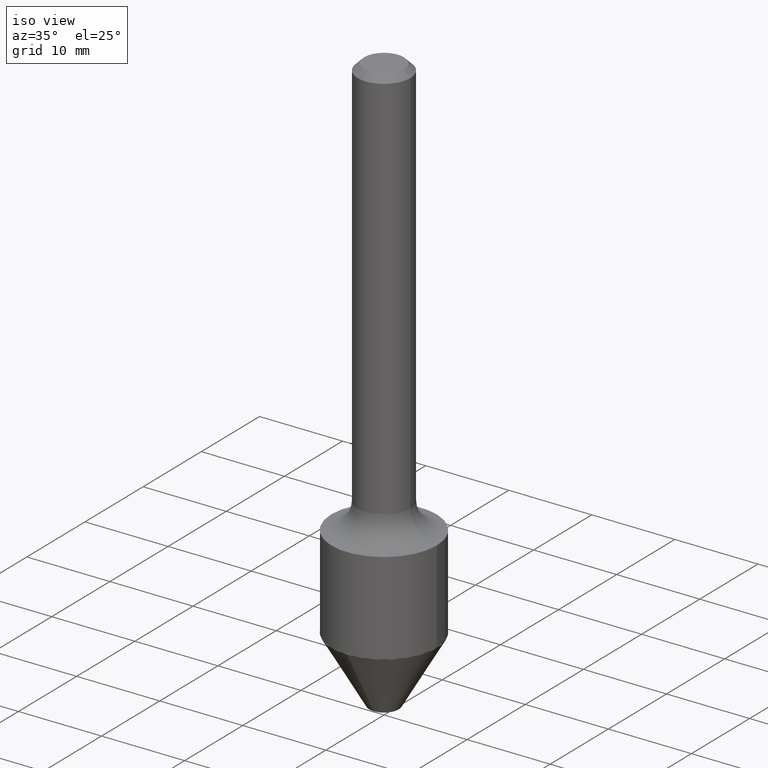
[diagram: clean part render]
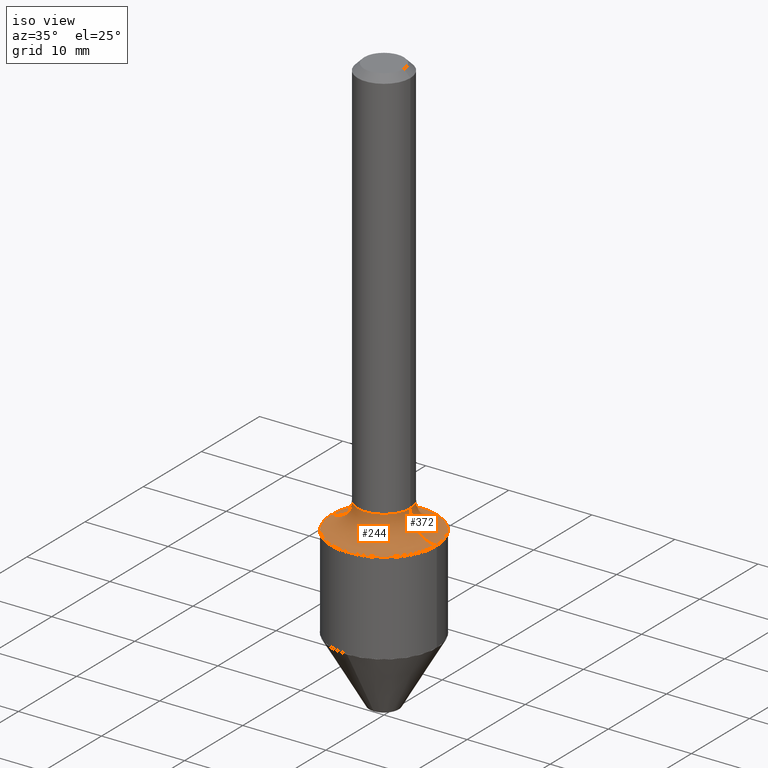
[diagram: same view with one multi-face feature highlighted, each face labeled with its STEP entity id]
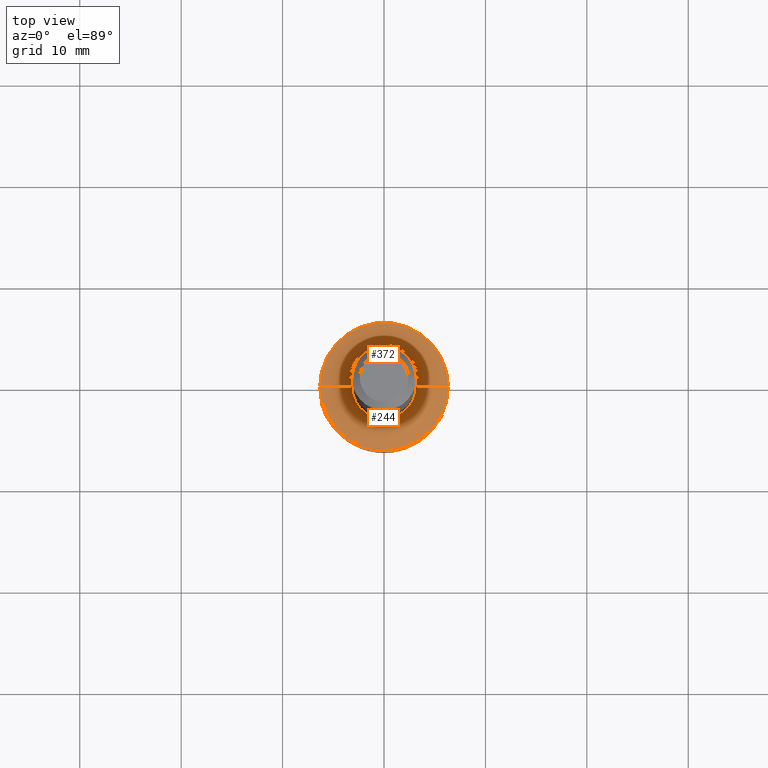
[diagram: same view with one multi-face feature highlighted, each face labeled with its STEP entity id]
A machine part, iso view. The highlighted faces form ONE feature: a constant-radius fillet chain: 2 tangent blend faces with common blend radius 3.175 mm. The faces share edges in the B-rep.
A second angle (top view) of the same feature is appended — it is thin or edge-on in the first view.
Their STEP definitions:
[1] entity #372 (Torus):
#1 = DIRECTION ( 'NONE',  ( 1.000000000000000000, -6.982962677686269077E-15, 4.883557194083112901E-29 ) ) ;
#6 = EDGE_CURVE ( 'NONE', #411, #233, #375, .T. ) ;
#7 = CARTESIAN_POINT ( 'NONE',  ( 0.2500000000000000000, -8.728703347107857054E-15, -1.999999999999999778 ) ) ;
#28 = CARTESIAN_POINT ( 'NONE',  ( -0.2500000000000000000, -5.206605838286039123E-15, -1.999999999999999778 ) ) ;
#36 = CARTESIAN_POINT ( 'NONE',  ( 0.1250000000000002498, -7.419397845041683624E-15, -1.875000000000000000 ) ) ;
#41 = CARTESIAN_POINT ( 'NONE',  ( -0.2500000000000000000, -4.770170670930647453E-15, -1.875000000000000000 ) ) ;
#45 = DIRECTION ( 'NONE',  ( -1.000000000000000000, 7.105427357601001859E-15, 0.000000000000000000 ) ) ;
#47 = ORIENTED_EDGE ( 'NONE', *, *, #392, .F. ) ;
#91 = CARTESIAN_POINT ( 'NONE',  ( 4.585254011597131119E-29, -6.546527510330898707E-15, -1.875000000000000000 ) ) ;
#110 = ORIENTED_EDGE ( 'NONE', *, *, #171, .T. ) ;
#114 = CIRCLE ( 'NONE', #466, 0.1249999999999996947 ) ;
#123 = VERTEX_POINT ( 'NONE', #347 ) ;
#166 = CARTESIAN_POINT ( 'NONE',  ( 4.890937612370272633E-29, -6.982962677686290376E-15, -1.999999999999999778 ) ) ;
#171 = EDGE_CURVE ( 'NONE', #399, #411, #114, .T. ) ;
#192 = DIRECTION ( 'NONE',  ( 1.000000000000000000, -6.982962677686264344E-15, 0.000000000000000000 ) ) ;
#233 = VERTEX_POINT ( 'NONE', #28 ) ;
#236 = DIRECTION ( 'NONE',  ( -2.445468806185136597E-29, 3.491481338843145583E-15, 1.000000000000000000 ) ) ;
#241 = DIRECTION ( 'NONE',  ( 7.105427357601001859E-15, 1.000000000000000000, -3.491481338843145583E-15 ) ) ;
#242 = ORIENTED_EDGE ( 'NONE', *, *, #461, .F. ) ;
#284 = DIRECTION ( 'NONE',  ( -2.445468806185136597E-29, 3.491481338843145583E-15, 1.000000000000000000 ) ) ;
#285 = DIRECTION ( 'NONE',  ( -2.445468806185136597E-29, 3.491481338843145583E-15, 1.000000000000000000 ) ) ;
#286 = DIRECTION ( 'NONE',  ( 1.000000000000000000, -6.982962677686266711E-15, 0.000000000000000000 ) ) ;
#288 = AXIS2_PLACEMENT_3D ( 'NONE', #166, #284, #286 ) ;
#324 = AXIS2_PLACEMENT_3D ( 'NONE', #41, #241, #45 ) ;
#347 = CARTESIAN_POINT ( 'NONE',  ( -0.1250000000000002498, -5.432477464458405904E-15, -1.875000000000000000 ) ) ;
#353 = FACE_OUTER_BOUND ( 'NONE', #389, .T. ) ;
#372 = ADVANCED_FACE ( 'NONE', ( #353 ), #459, .F. ) ;
#375 = CIRCLE ( 'NONE', #288, 0.2500000000000000000 ) ;
#389 = EDGE_LOOP ( 'NONE', ( #242, #47, #110, #469 ) ) ;
#392 = EDGE_CURVE ( 'NONE', #399, #123, #472, .T. ) ;
#399 = VERTEX_POINT ( 'NONE', #36 ) ;
#400 = CARTESIAN_POINT ( 'NONE',  ( 4.585254011597131119E-29, -6.546527510330898707E-15, -1.875000000000000000 ) ) ;
#411 = VERTEX_POINT ( 'NONE', #7 ) ;
#421 = CARTESIAN_POINT ( 'NONE',  ( 0.2500000000000000000, -8.292268179752465385E-15, -1.875000000000000000 ) ) ;
#452 = AXIS2_PLACEMENT_3D ( 'NONE', #400, #285, #1 ) ;
#458 = DIRECTION ( 'NONE',  ( -6.982962677686266711E-15, -1.000000000000000000, 3.491481338843145583E-15 ) ) ;
#459 = TOROIDAL_SURFACE ( 'NONE', #452, 0.2500000000000000000, 0.1249999999999996947 ) ;
#460 = DIRECTION ( 'NONE',  ( 1.000000000000000000, -6.982962677686272233E-15, 0.000000000000000000 ) ) ;
#461 = EDGE_CURVE ( 'NONE', #123, #233, #484, .T. ) ;
#466 = AXIS2_PLACEMENT_3D ( 'NONE', #421, #458, #460 ) ;
#469 = ORIENTED_EDGE ( 'NONE', *, *, #6, .T. ) ;
#472 = CIRCLE ( 'NONE', #510, 0.1250000000000002498 ) ;
#484 = CIRCLE ( 'NONE', #324, 0.1249999999999996947 ) ;
#510 = AXIS2_PLACEMENT_3D ( 'NONE', #91, #236, #192 ) ;
[2] entity #244 (Torus):
#7 = CARTESIAN_POINT ( 'NONE',  ( 0.2500000000000000000, -8.728703347107857054E-15, -1.999999999999999778 ) ) ;
#17 = CARTESIAN_POINT ( 'NONE',  ( 4.585254011597131119E-29, -6.546527510330898707E-15, -1.875000000000000000 ) ) ;
#27 = DIRECTION ( 'NONE',  ( -2.445468806185136597E-29, 3.491481338843145583E-15, 1.000000000000000000 ) ) ;
#28 = CARTESIAN_POINT ( 'NONE',  ( -0.2500000000000000000, -5.206605838286039123E-15, -1.999999999999999778 ) ) ;
#36 = CARTESIAN_POINT ( 'NONE',  ( 0.1250000000000002498, -7.419397845041683624E-15, -1.875000000000000000 ) ) ;
#41 = CARTESIAN_POINT ( 'NONE',  ( -0.2500000000000000000, -4.770170670930647453E-15, -1.875000000000000000 ) ) ;
#45 = DIRECTION ( 'NONE',  ( -1.000000000000000000, 7.105427357601001859E-15, 0.000000000000000000 ) ) ;
#63 = EDGE_CURVE ( 'NONE', #233, #411, #303, .T. ) ;
#64 = ORIENTED_EDGE ( 'NONE', *, *, #171, .F. ) ;
#73 = AXIS2_PLACEMENT_3D ( 'NONE', #17, #453, #491 ) ;
#78 = EDGE_CURVE ( 'NONE', #123, #399, #336, .T. ) ;
#87 = CARTESIAN_POINT ( 'NONE',  ( 4.890937612370272633E-29, -6.982962677686290376E-15, -1.999999999999999778 ) ) ;
#107 = AXIS2_PLACEMENT_3D ( 'NONE', #502, #27, #223 ) ;
#114 = CIRCLE ( 'NONE', #466, 0.1249999999999996947 ) ;
#123 = VERTEX_POINT ( 'NONE', #347 ) ;
#171 = EDGE_CURVE ( 'NONE', #399, #411, #114, .T. ) ;
#177 = TOROIDAL_SURFACE ( 'NONE', #73, 0.2500000000000000000, 0.1249999999999996947 ) ;
#193 = ORIENTED_EDGE ( 'NONE', *, *, #461, .T. ) ;
#223 = DIRECTION ( 'NONE',  ( 1.000000000000000000, -6.982962677686264344E-15, 0.000000000000000000 ) ) ;
#233 = VERTEX_POINT ( 'NONE', #28 ) ;
#241 = DIRECTION ( 'NONE',  ( 7.105427357601001859E-15, 1.000000000000000000, -3.491481338843145583E-15 ) ) ;
#244 = ADVANCED_FACE ( 'NONE', ( #255 ), #177, .F. ) ;
#255 = FACE_OUTER_BOUND ( 'NONE', #423, .T. ) ;
#303 = CIRCLE ( 'NONE', #508, 0.2500000000000000000 ) ;
#324 = AXIS2_PLACEMENT_3D ( 'NONE', #41, #241, #45 ) ;
#336 = CIRCLE ( 'NONE', #107, 0.1250000000000002498 ) ;
#347 = CARTESIAN_POINT ( 'NONE',  ( -0.1250000000000002498, -5.432477464458405904E-15, -1.875000000000000000 ) ) ;
#359 = ORIENTED_EDGE ( 'NONE', *, *, #78, .F. ) ;
#361 = DIRECTION ( 'NONE',  ( -2.445468806185136597E-29, 3.491481338843145583E-15, 1.000000000000000000 ) ) ;
#399 = VERTEX_POINT ( 'NONE', #36 ) ;
#411 = VERTEX_POINT ( 'NONE', #7 ) ;
#421 = CARTESIAN_POINT ( 'NONE',  ( 0.2500000000000000000, -8.292268179752465385E-15, -1.875000000000000000 ) ) ;
#423 = EDGE_LOOP ( 'NONE', ( #359, #193, #429, #64 ) ) ;
#429 = ORIENTED_EDGE ( 'NONE', *, *, #63, .T. ) ;
#453 = DIRECTION ( 'NONE',  ( -2.445468806185136597E-29, 3.491481338843145583E-15, 1.000000000000000000 ) ) ;
#458 = DIRECTION ( 'NONE',  ( -6.982962677686266711E-15, -1.000000000000000000, 3.491481338843145583E-15 ) ) ;
#460 = DIRECTION ( 'NONE',  ( 1.000000000000000000, -6.982962677686272233E-15, 0.000000000000000000 ) ) ;
#461 = EDGE_CURVE ( 'NONE', #123, #233, #484, .T. ) ;
#466 = AXIS2_PLACEMENT_3D ( 'NONE', #421, #458, #460 ) ;
#484 = CIRCLE ( 'NONE', #324, 0.1249999999999996947 ) ;
#491 = DIRECTION ( 'NONE',  ( 1.000000000000000000, -6.982962677686269077E-15, 4.883557194083112901E-29 ) ) ;
#502 = CARTESIAN_POINT ( 'NONE',  ( 4.585254011597131119E-29, -6.546527510330898707E-15, -1.875000000000000000 ) ) ;
#508 = AXIS2_PLACEMENT_3D ( 'NONE', #87, #361, #518 ) ;
#518 = DIRECTION ( 'NONE',  ( 1.000000000000000000, -6.982962677686266711E-15, 0.000000000000000000 ) ) ;